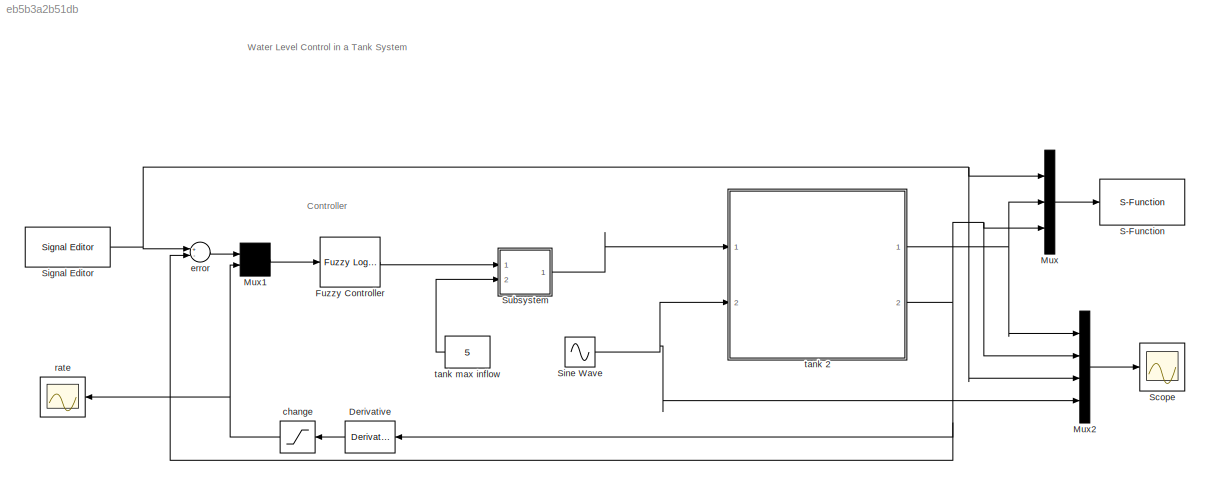
MODEL slx_eb5b3a2b51db
KIND model
CONFIG AbsTol = 1e-6
CONFIG EnableMultiTasking = off
CONFIG FixedStep = auto
CONFIG MaxStep = 0.2
CONFIG MinStep = auto
CONFIG PreLoadFcn = tank=readfis('tank');
CONFIG RelTol = 1e-3
CONFIG SampleTimeConstraint = Unconstrained
CONFIG Solver = ode45
CONFIG SolverName = ode45
CONFIG StartTime = 0
CONFIG StopTime = 100
BLOCK [Derivative] Derivative
BLOCK [Reference] Fuzzy Controller   REF=fuzblock/Fuzzy Logic   (lib defined in mdl_858b3b3e7478)
Controller 
with Ruleviewer
  Ports = [1, 1]
  SourceBlock = fuzblock/Fuzzy Logic \nController \nwith Ruleviewer
  SourceProductBaseCode = FL
  SourceType = Fuzzy Inference System
BLOCK [Mux] Mux
  DisplayOption = bar
  Inputs = 3
  Ports = [3, 1]
BLOCK [Mux] Mux1
  Inputs = 2
  Ports = [2, 1]
BLOCK [Mux] Mux2
  DisplayOption = bar
  Ports = [4, 1]
BLOCK [S-Function] S-Function
  EnableBusSupport = off
  FunctionName = animtank_puc
  Parameters = 1
  Ports = [1]
  SFcnIsStateOwnerBlock = off
  SFunctionDeploymentMode = off
BLOCK [Scope] Scope
  Floating = off
  NumInputPorts = 1
  Ports = [1]
  ScopeSpecificationString = Simulink.scopes.TimeScopeBlockCfg('CurrentConfiguration', extmgr.ConfigurationSet(extmgr.Configuration('Core','General UI',true),extmgr.Configuration('Core','Source UI',true),extmgr.Configuration('Sources','WiredSimulink',true),extmgr.Configuration('Visuals','Time Domain',true,'SerializedDisplays',{struct('MinYLimReal','-0.075','MaxYLimReal','1.675','YLabelReal','','MinYLimMag','0.00000','MaxYLimM...<+1414ch>
BLOCK [Reference] Signal Editor  REF=SignalEditorBlockLib/Signal Editor
  Ports = [0, 1]
  SourceBlock = SignalEditorBlockLib/Signal Editor
  SourceProductBaseCode = SL
  SourceType = SignalEditor
  UserDataPersistent = on
BLOCK [Sin] Sine Wave
  Amplitude = 0.1
  Bias = 0.2
  Frequency = 0.3
  Ports = [0, 1]
  SampleTime = 0
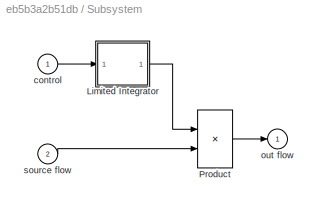
BLOCK [SubSystem] Subsystem
  Ports = [2, 1]
  RequestExecContextInheritance = off
  ShowPortLabels = none
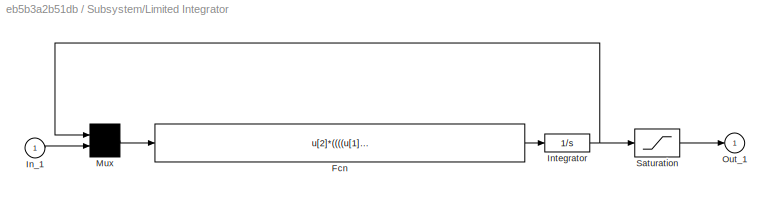
BLOCK [SubSystem] Subsystem/Limited Integrator
  Ports = [1, 1]
  RequestExecContextInheritance = off
  ShowPortLabels = none
BLOCK [Fcn] Subsystem/Limited Integrator/Fcn
  Expr = u[2]*((((u[1]>lb)+(u[2]>=0))>0) * (((u[1]<ub)+(u[2]<=0))>0))
BLOCK [Inport] Subsystem/Limited Integrator/In_1
  IconDisplay = Port number
BLOCK [Integrator] Subsystem/Limited Integrator/Integrator
  InitialCondition = xi
  Ports = [1, 1]
BLOCK [Mux] Subsystem/Limited Integrator/Mux
  Inputs = 2
  Ports = [2, 1]
BLOCK [Outport] Subsystem/Limited Integrator/Out_1
  IconDisplay = Port number
  InitialOutput = 0
BLOCK [Saturate] Subsystem/Limited Integrator/Saturation
  InputPortMap = u0
  LowerLimit = lb
  Ports = [1, 1]
  UpperLimit = ub
BLOCK [Product] Subsystem/Product
  Ports = [2, 1]
BLOCK [Inport] Subsystem/control
  IconDisplay = Port number
BLOCK [Outport] Subsystem/out flow
  IconDisplay = Port number
  InitialOutput = 0
BLOCK [Inport] Subsystem/source flow
  IconDisplay = Port number
  Port = 2
BLOCK [Saturate] change
  InputPortMap = u0
  LowerLimit = -0.1
  Ports = [1, 1]
  UpperLimit = 0.1
BLOCK [Sum] error
  Inputs = +-
  Ports = [2, 1]
BLOCK [Scope] rate
  Floating = off
  NumInputPorts = 1
  Ports = [1]
  ScopeSpecificationString = Simulink.scopes.TimeScopeBlockCfg('CurrentConfiguration', extmgr.ConfigurationSet(extmgr.Configuration('Core','General UI',true),extmgr.Configuration('Core','Source UI',true),extmgr.Configuration('Sources','WiredSimulink',true,'DataLoggingVariableName','ScopeData1'),extmgr.Configuration('Visuals','Time Domain',true,'SerializedDisplays',{struct('MinYLimReal','-0.11849','MaxYLimReal','0.06641','YLab...<+1417ch>
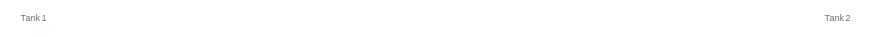
[diagram: tank 2 - part 1/3, top center region]
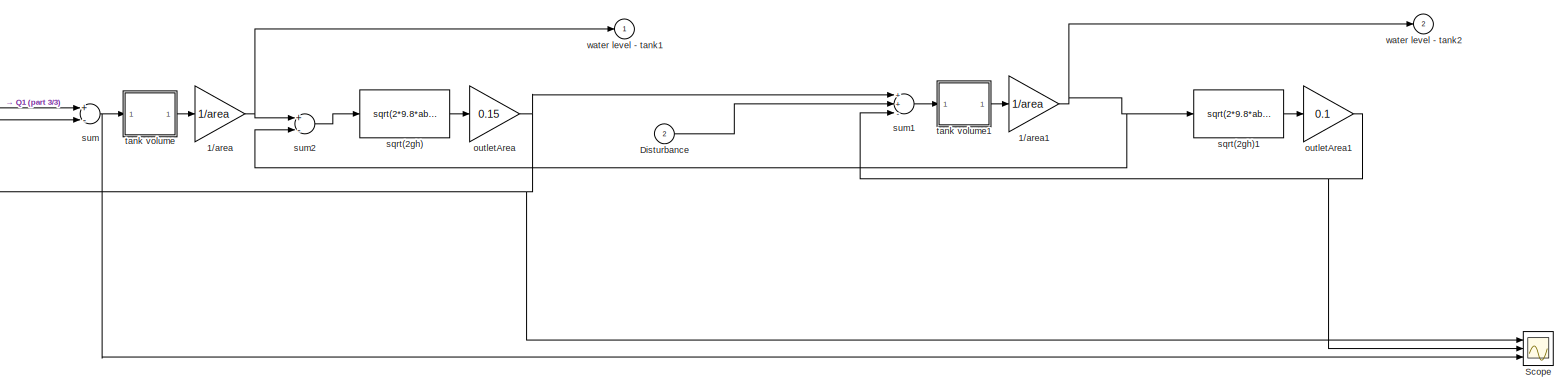
[diagram: tank 2 - part 2/3, full width, middle band]
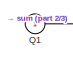
[diagram: tank 2 - part 3/3, middle left region]
BLOCK [SubSystem] tank 2
  Ports = [2, 2]
  RequestExecContextInheritance = off
  ShowPortLabels = none
BLOCK [Gain] tank 2/1//area
  Gain = 1/area
BLOCK [Gain] tank 2/1//area1
  Gain = 1/area
BLOCK [Inport] tank 2/Disturbance
  IconDisplay = Port number
  Port = 2
BLOCK [Inport] tank 2/Q1 
  IconDisplay = Port number
BLOCK [Scope] tank 2/Scope
  Floating = off
  NumInputPorts = 3
  Ports = [3]
  ScopeSpecificationString = Simulink.scopes.TimeScopeBlockCfg('CurrentConfiguration', extmgr.ConfigurationSet(extmgr.Configuration('Core','General UI',true),extmgr.Configuration('Core','Source UI',true),extmgr.Configuration('Sources','WiredSimulink',true,'DataLoggingVariableName','ScopeData1'),extmgr.Configuration('Visuals','Time Domain',true,'SerializedDisplays',{struct('MinYLimReal','-0.65427','MaxYLimReal','0.76836','YLab...<+1440ch>
BLOCK [Gain] tank 2/outletArea
  Gain = 0.15
BLOCK [Gain] tank 2/outletArea1
  Gain = 0.1
BLOCK [Fcn] tank 2/sqrt(2gh)
  Expr = sqrt(2*9.8*abs(u))
BLOCK [Fcn] tank 2/sqrt(2gh)1
  Expr = sqrt(2*9.8*abs(u))
BLOCK [Sum] tank 2/sum
  Inputs = +-
  Ports = [2, 1]
BLOCK [Sum] tank 2/sum1
  Inputs = ++-
  Ports = [3, 1]
BLOCK [Sum] tank 2/sum2
  Inputs = +-
  Ports = [2, 1]
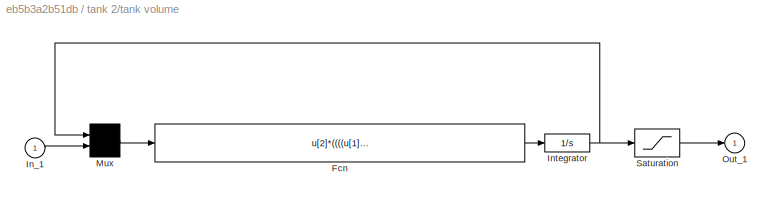
BLOCK [SubSystem] tank 2/tank volume
  Ports = [1, 1]
  RequestExecContextInheritance = off
  ShowPortLabels = none
BLOCK [Fcn] tank 2/tank volume/Fcn
  Expr = u[2]*((((u[1]>lb)+(u[2]>=0))>0) * (((u[1]<ub)+(u[2]<=0))>0))
BLOCK [Inport] tank 2/tank volume/In_1
  IconDisplay = Port number
BLOCK [Integrator] tank 2/tank volume/Integrator
  InitialCondition = xi
  Ports = [1, 1]
BLOCK [Mux] tank 2/tank volume/Mux
  Inputs = 2
  Ports = [2, 1]
BLOCK [Outport] tank 2/tank volume/Out_1
  IconDisplay = Port number
  InitialOutput = 0
BLOCK [Saturate] tank 2/tank volume/Saturation
  InputPortMap = u0
  LowerLimit = lb
  Ports = [1, 1]
  UpperLimit = ub
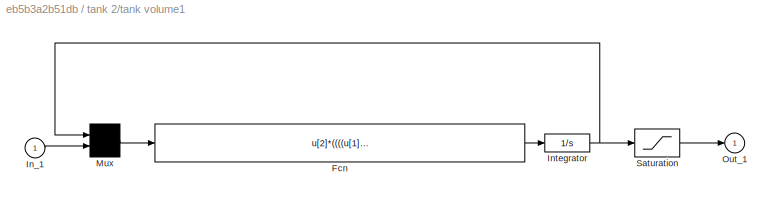
BLOCK [SubSystem] tank 2/tank volume1
  Ports = [1, 1]
  RequestExecContextInheritance = off
  ShowPortLabels = none
BLOCK [Fcn] tank 2/tank volume1/Fcn
  Expr = u[2]*((((u[1]>lb)+(u[2]>=0))>0) * (((u[1]<ub)+(u[2]<=0))>0))
BLOCK [Inport] tank 2/tank volume1/In_1
  IconDisplay = Port number
BLOCK [Integrator] tank 2/tank volume1/Integrator
  InitialCondition = xi
  Ports = [1, 1]
BLOCK [Mux] tank 2/tank volume1/Mux
  Inputs = 2
  Ports = [2, 1]
BLOCK [Outport] tank 2/tank volume1/Out_1
  IconDisplay = Port number
  InitialOutput = 0
BLOCK [Saturate] tank 2/tank volume1/Saturation
  InputPortMap = u0
  LowerLimit = lb
  Ports = [1, 1]
  UpperLimit = ub
BLOCK [Outport] tank 2/water level - tank1 
  IconDisplay = Port number
  InitialOutput = 0
BLOCK [Outport] tank 2/water level - tank2 
  IconDisplay = Port number
  InitialOutput = 0
  Port = 2
BLOCK [Constant] tank max inflow
  Value = 5
ANNOTATION (root): Water Level Control in a Tank System
ANNOTATION (root): Controller
ANNOTATION tank 2: Tank 1
ANNOTATION tank 2: Tank 2
LINE Derivative:1 -> change:1
LINE Fuzzy Controller :1 -> Subsystem:1
LINE Mux1:1 -> Fuzzy Controller :1
LINE Mux2:1 -> Scope:1
LINE Mux:1 -> S-Function:1
NET Signal Editor:1 -> Mux2:3, Mux:1, error:1
NET Sine Wave:1 -> Mux2:4, tank 2:2
LINE Subsystem/Limited Integrator/Fcn:1 -> Subsystem/Limited Integrator/Integrator:1
LINE Subsystem/Limited Integrator/In_1:1 -> Subsystem/Limited Integrator/Mux:2
NET Subsystem/Limited Integrator/Integrator:1 -> Subsystem/Limited Integrator/Mux:1, Subsystem/Limited Integrator/Saturation:1
LINE Subsystem/Limited Integrator/Mux:1 -> Subsystem/Limited Integrator/Fcn:1
LINE Subsystem/Limited Integrator/Saturation:1 -> Subsystem/Limited Integrator/Out_1:1
LINE Subsystem/Limited Integrator:1 -> Subsystem/Product:1
LINE Subsystem/Product:1 -> Subsystem/out flow:1
LINE Subsystem/control:1 -> Subsystem/Limited Integrator:1
LINE Subsystem/source flow:1 -> Subsystem/Product:2
LINE Subsystem:1 -> tank 2:1
NET change:1 -> Mux1:2, rate:1
LINE error:1 -> Mux1:1
NET tank 2/1//area1:1 -> tank 2/sqrt(2gh)1:1, tank 2/sum2:2, tank 2/water level - tank2 :1
NET tank 2/1//area:1 -> tank 2/sum2:1, tank 2/water level - tank1 :1
LINE tank 2/Disturbance:1 -> tank 2/sum1:2
LINE tank 2/Q1 :1 -> tank 2/sum:1
NET tank 2/outletArea1:1 -> tank 2/Scope:2, tank 2/sum1:3
NET tank 2/outletArea:1 -> tank 2/Scope:1, tank 2/sum1:1, tank 2/sum:2
LINE tank 2/sqrt(2gh)1:1 -> tank 2/outletArea1:1
LINE tank 2/sqrt(2gh):1 -> tank 2/outletArea:1
LINE tank 2/sum1:1 -> tank 2/tank volume1:1
LINE tank 2/sum2:1 -> tank 2/sqrt(2gh):1
NET tank 2/sum:1 -> tank 2/Scope:3, tank 2/tank volume:1
LINE tank 2/tank volume/Fcn:1 -> tank 2/tank volume/Integrator:1
LINE tank 2/tank volume/In_1:1 -> tank 2/tank volume/Mux:2
NET tank 2/tank volume/Integrator:1 -> tank 2/tank volume/Mux:1, tank 2/tank volume/Saturation:1
LINE tank 2/tank volume/Mux:1 -> tank 2/tank volume/Fcn:1
LINE tank 2/tank volume/Saturation:1 -> tank 2/tank volume/Out_1:1
LINE tank 2/tank volume1/Fcn:1 -> tank 2/tank volume1/Integrator:1
LINE tank 2/tank volume1/In_1:1 -> tank 2/tank volume1/Mux:2
NET tank 2/tank volume1/Integrator:1 -> tank 2/tank volume1/Mux:1, tank 2/tank volume1/Saturation:1
LINE tank 2/tank volume1/Mux:1 -> tank 2/tank volume1/Fcn:1
LINE tank 2/tank volume1/Saturation:1 -> tank 2/tank volume1/Out_1:1
LINE tank 2/tank volume1:1 -> tank 2/1//area1:1
LINE tank 2/tank volume:1 -> tank 2/1//area:1
NET tank 2:1 -> Mux2:1, Mux:2
NET tank 2:2 -> Derivative:1, Mux2:2, Mux:3, error:2
LINE tank max inflow:1 -> Subsystem:2
note: NET lines group one-source signal fan-out (src -> all destinations, sorted); 1:1 wires keep LINE
